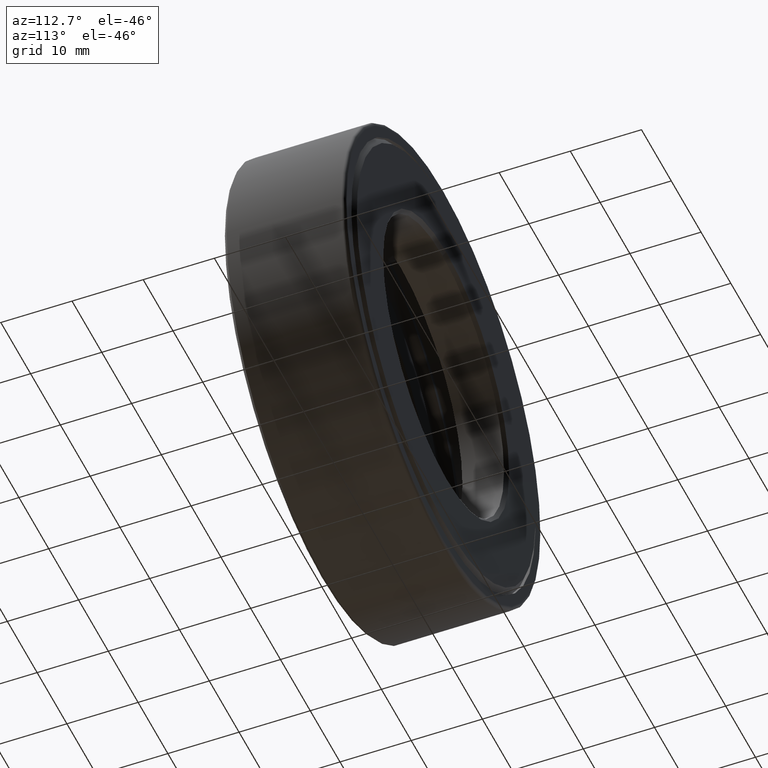
[diagram: clean part render]
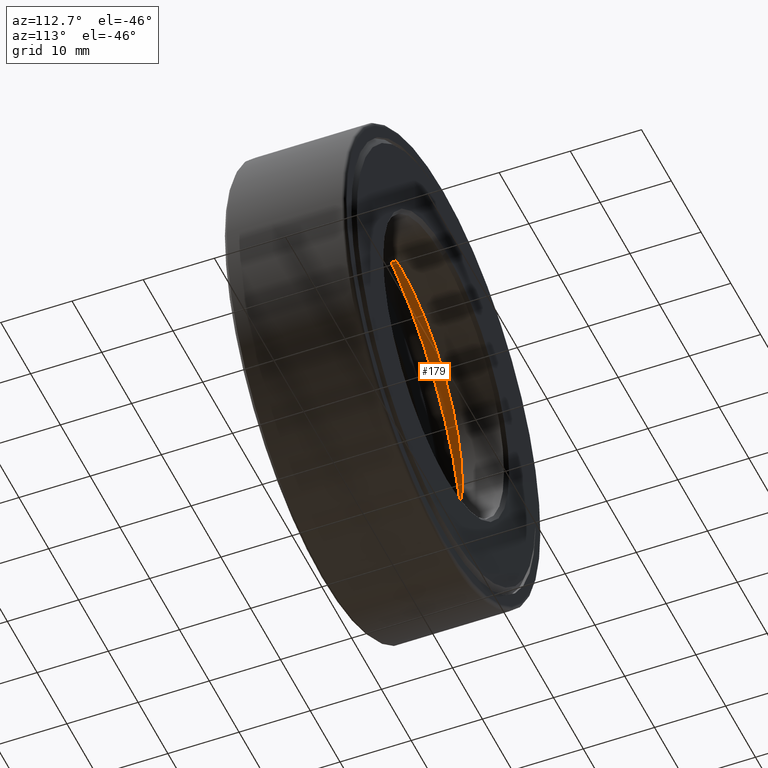
[diagram: same view with one face highlighted and labeled with its STEP entity id]
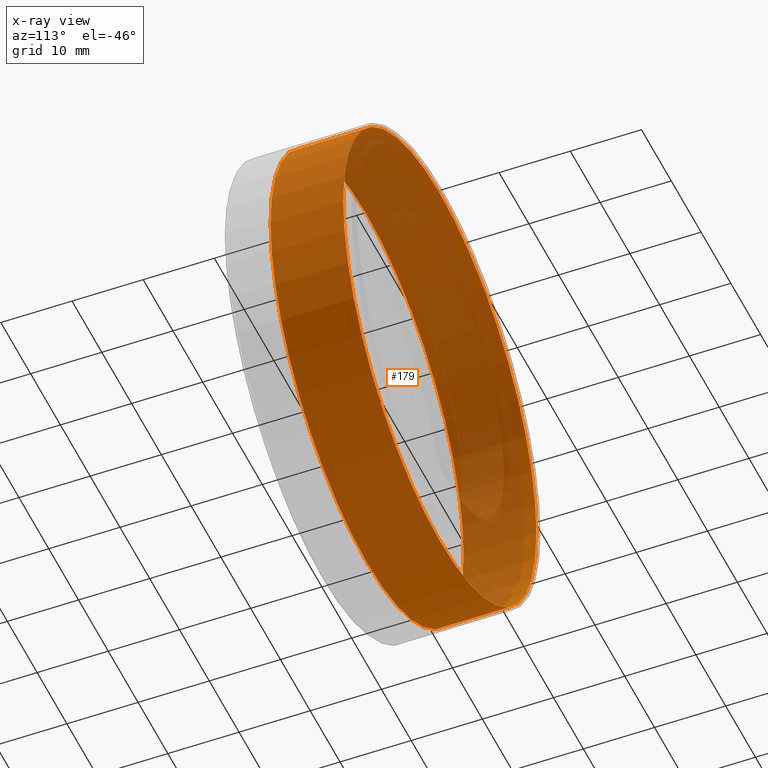
[diagram: x-ray of the same camera — body ghosted, the highlighted face saturated]
A machine part, auxiliary view. The second image highlights one B-rep face of the part: STEP entity #179.
The next image is the same camera in x-ray: the body ghosted, the highlighted face saturated — about 37% of this face is hidden behind the body in this view.
In plain terms, the highlighted cylindrical surface (bore or boss wall) has radius 32.4326 mm, axis along (-0, 1, -0).
Its self-contained STEP definition (entity closure, byte-faithful):
#17 = CARTESIAN_POINT ( 'NONE',  ( 0.0000000000000000000, 0.6524999999999997500, 1.276875000000000000 ) ) ;
#54 = FACE_OUTER_BOUND ( 'NONE', #344, .T. ) ;
#56 = FACE_OUTER_BOUND ( 'NONE', #136, .T. ) ;
#92 = DIRECTION ( 'NONE',  ( 0.0000000000000000000, 0.0000000000000000000, 1.000000000000000000 ) ) ;
#103 = CARTESIAN_POINT ( 'NONE',  ( 0.0000000000000000000, 0.2499999999999998300, 1.276875000000000000 ) ) ;
#112 = VERTEX_POINT ( 'NONE', #17 ) ;
#127 = DIRECTION ( 'NONE',  ( -0.0000000000000000000, 1.000000000000000000, -0.0000000000000000000 ) ) ;
#136 = EDGE_LOOP ( 'NONE', ( #552 ) ) ;
#159 = VERTEX_POINT ( 'NONE', #103 ) ;
#179 = ADVANCED_FACE ( 'NONE', ( #56, #54 ), #294, .F. ) ;
#180 = CARTESIAN_POINT ( 'NONE',  ( 0.0000000000000000000, 0.6524999999999997500, 0.0000000000000000000 ) ) ;
#191 = EDGE_CURVE ( 'NONE', #112, #112, #280, .T. ) ;
#220 = DIRECTION ( 'NONE',  ( 0.0000000000000000000, 0.0000000000000000000, 1.000000000000000000 ) ) ;
#223 = ORIENTED_EDGE ( 'NONE', *, *, #191, .T. ) ;
#260 = DIRECTION ( 'NONE',  ( -0.0000000000000000000, 1.000000000000000000, -0.0000000000000000000 ) ) ;
#261 = CARTESIAN_POINT ( 'NONE',  ( 0.0000000000000000000, 0.0000000000000000000, 0.0000000000000000000 ) ) ;
#280 = CIRCLE ( 'NONE', #434, 1.276875000000000000 ) ;
#294 = CYLINDRICAL_SURFACE ( 'NONE', #314, 1.276875000000000000 ) ;
#314 = AXIS2_PLACEMENT_3D ( 'NONE', #261, #260, #220 ) ;
#323 = CARTESIAN_POINT ( 'NONE',  ( 0.0000000000000000000, 0.2499999999999998300, 0.0000000000000000000 ) ) ;
#344 = EDGE_LOOP ( 'NONE', ( #223 ) ) ;
#357 = EDGE_CURVE ( 'NONE', #159, #159, #402, .T. ) ;
#402 = CIRCLE ( 'NONE', #555, 1.276875000000000000 ) ;
#434 = AXIS2_PLACEMENT_3D ( 'NONE', #180, #127, #591 ) ;
#552 = ORIENTED_EDGE ( 'NONE', *, *, #357, .F. ) ;
#555 = AXIS2_PLACEMENT_3D ( 'NONE', #323, #562, #92 ) ;
#562 = DIRECTION ( 'NONE',  ( -0.0000000000000000000, 1.000000000000000000, -0.0000000000000000000 ) ) ;
#591 = DIRECTION ( 'NONE',  ( 0.0000000000000000000, 0.0000000000000000000, 1.000000000000000000 ) ) ;